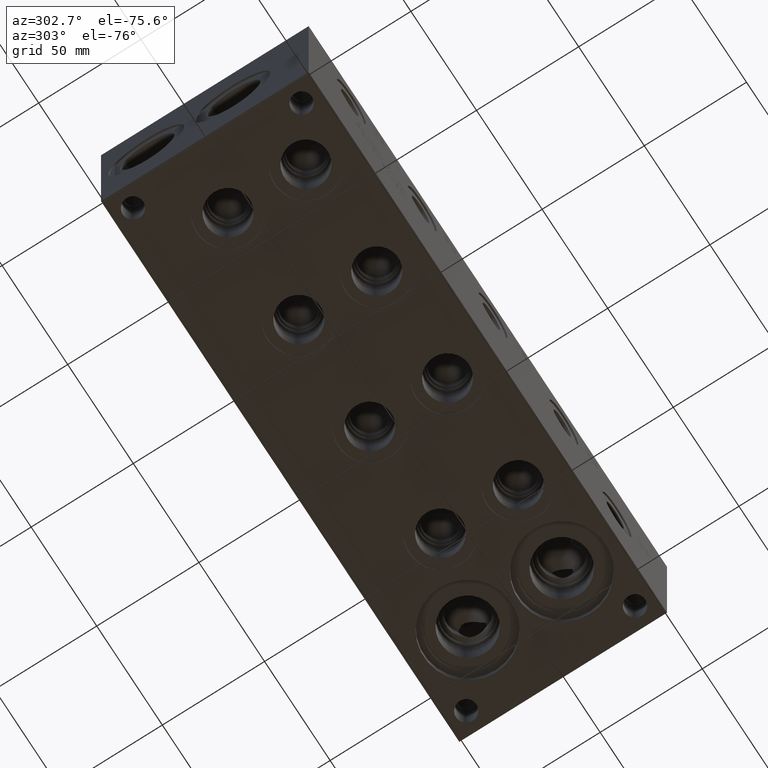
[diagram: clean part render]
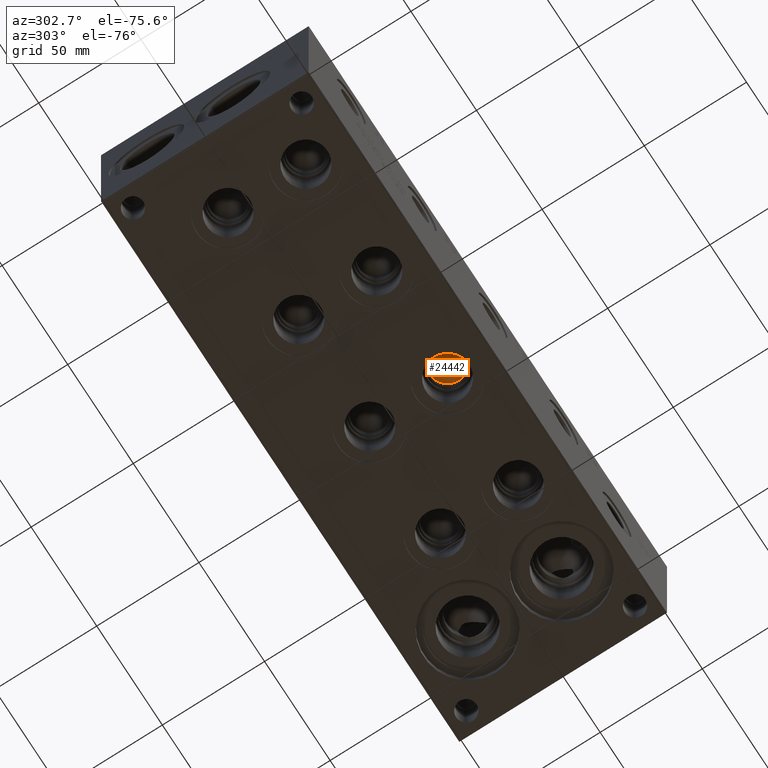
[diagram: same view with one face highlighted and labeled with its STEP entity id]
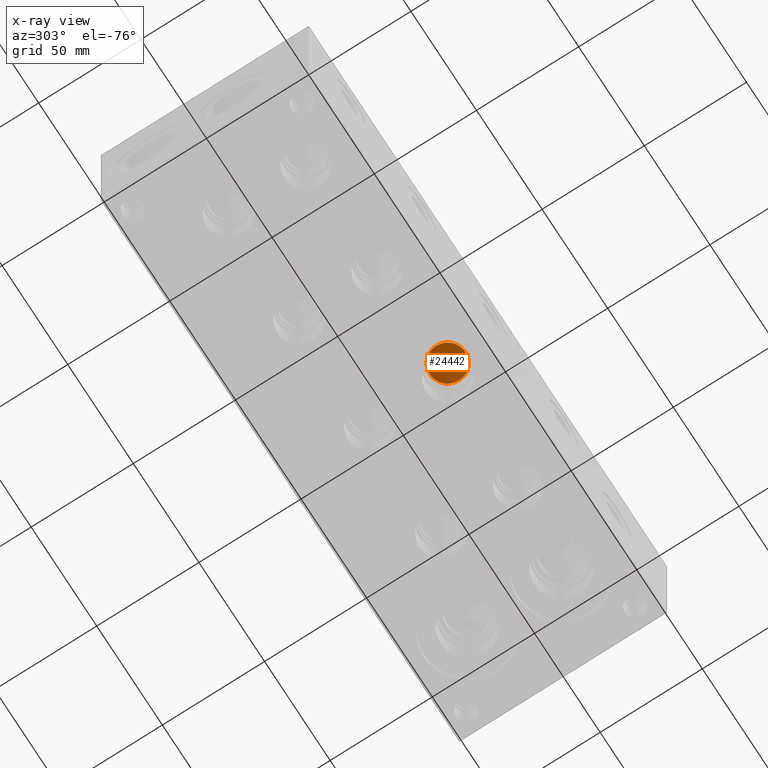
[diagram: x-ray of the same camera — body ghosted, the highlighted face saturated]
A machine part, auxiliary view. The second image highlights one B-rep face of the part: STEP entity #24442.
The next image is the same camera in x-ray: the body ghosted, the highlighted face saturated — about 0% of this face is hidden behind the body in this view.
In plain terms, the highlighted conical surface has half-angle 60 deg.
Its self-contained STEP definition (entity closure, byte-faithful):
#182=CONICAL_SURFACE('',#25515,4.3688,1.0471975511966);
#418=CIRCLE('',#25516,8.7376);
#419=CIRCLE('',#25517,8.7376);
#3214=FACE_OUTER_BOUND('',#4621,.T.);
#4621=EDGE_LOOP('',(#20546,#20547,#20548,#20549));
#6860=LINE('',#42014,#8956);
#8956=VECTOR('',#29700,4.3688);
#11068=VERTEX_POINT('',#42010);
#11069=VERTEX_POINT('',#42011);
#11070=VERTEX_POINT('',#42013);
#14369=EDGE_CURVE('',#11068,#11069,#418,.T.);
#14370=EDGE_CURVE('',#11069,#11070,#6860,.T.);
#14371=EDGE_CURVE('',#11069,#11068,#419,.T.);
#20546=ORIENTED_EDGE('',*,*,#14369,.T.);
#20547=ORIENTED_EDGE('',*,*,#14370,.T.);
#20548=ORIENTED_EDGE('',*,*,#14370,.F.);
#20549=ORIENTED_EDGE('',*,*,#14371,.T.);
#24442=ADVANCED_FACE('',(#3214),#182,.F.);
#25515=AXIS2_PLACEMENT_3D('',#42009,#29696,#29697);
#25516=AXIS2_PLACEMENT_3D('',#42012,#29698,#29699);
#25517=AXIS2_PLACEMENT_3D('',#42015,#29701,#29702);
#29696=DIRECTION('center_axis',(0.,0.,-1.));
#29697=DIRECTION('ref_axis',(1.,0.,0.));
#29698=DIRECTION('center_axis',(0.,0.,-1.));
#29699=DIRECTION('ref_axis',(1.,0.,0.));
#29700=DIRECTION('',(0.866025403784439,-1.06057523872491E-16,0.5));
#29701=DIRECTION('center_axis',(0.,0.,-1.));
#29702=DIRECTION('ref_axis',(1.,0.,0.));
#42009=CARTESIAN_POINT('Origin',(140.4874,22.225,27.9985278560356));
#42010=CARTESIAN_POINT('',(149.225,22.225,25.4762));
#42011=CARTESIAN_POINT('',(131.7498,22.225,25.4762));
#42012=CARTESIAN_POINT('Origin',(140.4874,22.225,25.4762));
#42013=CARTESIAN_POINT('',(140.4874,22.225,30.5208557120713));
#42014=CARTESIAN_POINT('',(136.1186,22.225,27.9985278560356));
#42015=CARTESIAN_POINT('Origin',(140.4874,22.225,25.4762));